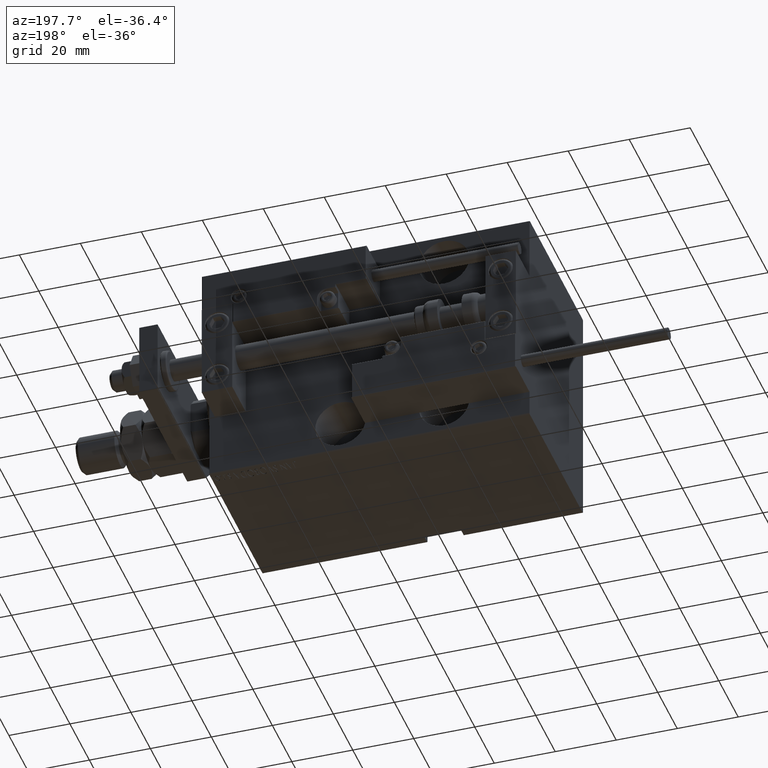
[diagram: clean part render]
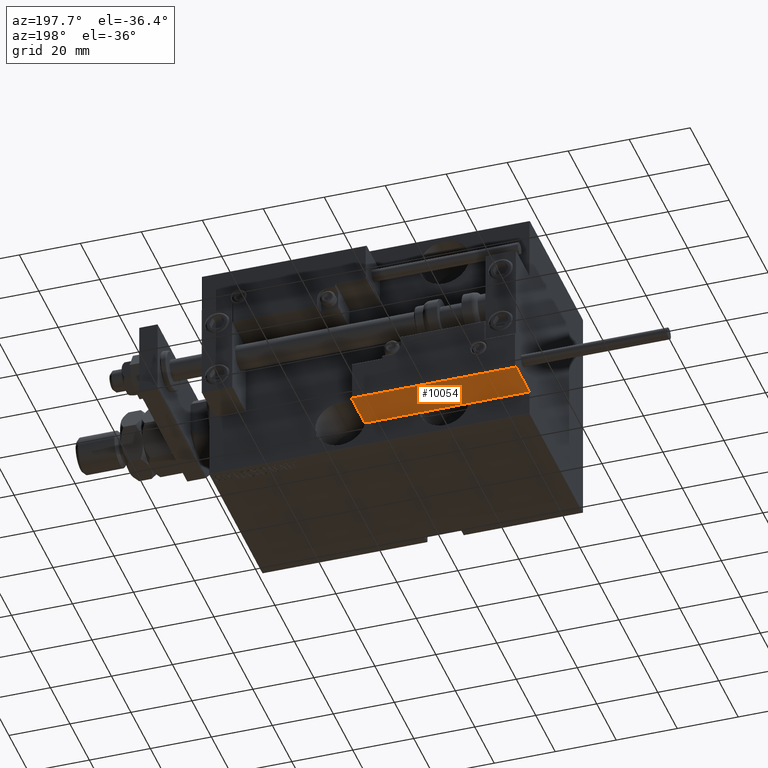
[diagram: same view with one face highlighted and labeled with its STEP entity id]
A machine part, auxiliary view. The second image highlights one B-rep face of the part: STEP entity #10054.
In plain terms, the highlighted planar face has unit normal (-0, -0, 1).
Its self-contained STEP definition (entity closure, byte-faithful):
#213 = DIRECTION ( 'NONE',  ( 1.000000000000000000, -6.424901762877063495E-17, -0.000000000000000000 ) ) ;
#4911 = CARTESIAN_POINT ( 'NONE',  ( 27.00000000000006395, 20.00000000000001776, 0.000000000000000000 ) ) ;
#6766 = AXIS2_PLACEMENT_3D ( 'NONE', #48057, #48585, #27659 ) ;
#6809 = LINE ( 'NONE', #43157, #21750 ) ;
#7790 = LINE ( 'NONE', #47783, #48841 ) ;
#10054 = ADVANCED_FACE ( 'NONE', ( #50971 ), #15136, .F. ) ;
#12806 = EDGE_LOOP ( 'NONE', ( #41677, #43605, #29156, #23526 ) ) ;
#13242 = VERTEX_POINT ( 'NONE', #14084 ) ;
#14084 = CARTESIAN_POINT ( 'NONE',  ( -26.99999999999993605, 20.00000000000002132, 13.70000000000000107 ) ) ;
#14419 = CARTESIAN_POINT ( 'NONE',  ( 27.00000000000006395, 20.00000000000001776, 13.70000000000000107 ) ) ;
#15136 = PLANE ( 'NONE',  #6766 ) ;
#15623 = DIRECTION ( 'NONE',  ( -0.000000000000000000, -0.000000000000000000, -1.000000000000000000 ) ) ;
#21750 = VECTOR ( 'NONE', #27424, 1000.000000000000000 ) ;
#21979 = VERTEX_POINT ( 'NONE', #14419 ) ;
#23526 = ORIENTED_EDGE ( 'NONE', *, *, #51303, .T. ) ;
#27424 = DIRECTION ( 'NONE',  ( -1.000000000000000000, 6.424901762877062263E-17, 0.000000000000000000 ) ) ;
#27584 = VERTEX_POINT ( 'NONE', #4911 ) ;
#27659 = DIRECTION ( 'NONE',  ( 1.000000000000000000, -6.424901762877063495E-17, 0.000000000000000000 ) ) ;
#29156 = ORIENTED_EDGE ( 'NONE', *, *, #33984, .T. ) ;
#29611 = CARTESIAN_POINT ( 'NONE',  ( -26.99999999999993605, 20.00000000000002132, 14.00000000000000000 ) ) ;
#30286 = CARTESIAN_POINT ( 'NONE',  ( -26.99999999999993605, 20.00000000000002132, 0.000000000000000000 ) ) ;
#33984 = EDGE_CURVE ( 'NONE', #21979, #27584, #39942, .T. ) ;
#35432 = VECTOR ( 'NONE', #15623, 1000.000000000000000 ) ;
#36522 = VECTOR ( 'NONE', #45597, 1000.000000000000000 ) ;
#37944 = EDGE_CURVE ( 'NONE', #13242, #21979, #7790, .T. ) ;
#39672 = CARTESIAN_POINT ( 'NONE',  ( 27.00000000000006395, 20.00000000000001776, 14.00000000000000000 ) ) ;
#39942 = LINE ( 'NONE', #39672, #35432 ) ;
#41677 = ORIENTED_EDGE ( 'NONE', *, *, #44439, .F. ) ;
#43157 = CARTESIAN_POINT ( 'NONE',  ( 27.00000000000006395, 20.00000000000001776, 0.000000000000000000 ) ) ;
#43484 = VERTEX_POINT ( 'NONE', #30286 ) ;
#43605 = ORIENTED_EDGE ( 'NONE', *, *, #37944, .T. ) ;
#44439 = EDGE_CURVE ( 'NONE', #13242, #43484, #49772, .T. ) ;
#45597 = DIRECTION ( 'NONE',  ( -0.000000000000000000, -0.000000000000000000, -1.000000000000000000 ) ) ;
#47783 = CARTESIAN_POINT ( 'NONE',  ( 27.00000000000006395, 20.00000000000001776, 13.70000000000000107 ) ) ;
#48057 = CARTESIAN_POINT ( 'NONE',  ( 27.00000000000006395, 20.00000000000001776, 14.00000000000000000 ) ) ;
#48585 = DIRECTION ( 'NONE',  ( -6.424901762877063495E-17, -1.000000000000000000, 0.000000000000000000 ) ) ;
#48841 = VECTOR ( 'NONE', #213, 1000.000000000000000 ) ;
#49772 = LINE ( 'NONE', #29611, #36522 ) ;
#50971 = FACE_OUTER_BOUND ( 'NONE', #12806, .T. ) ;
#51303 = EDGE_CURVE ( 'NONE', #27584, #43484, #6809, .T. ) ;